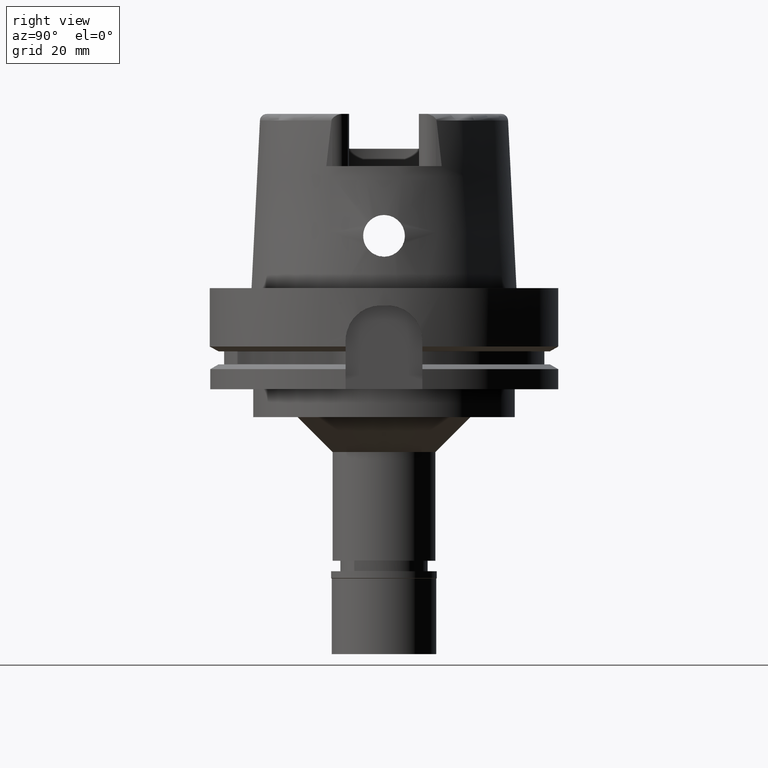
[diagram: clean part render]
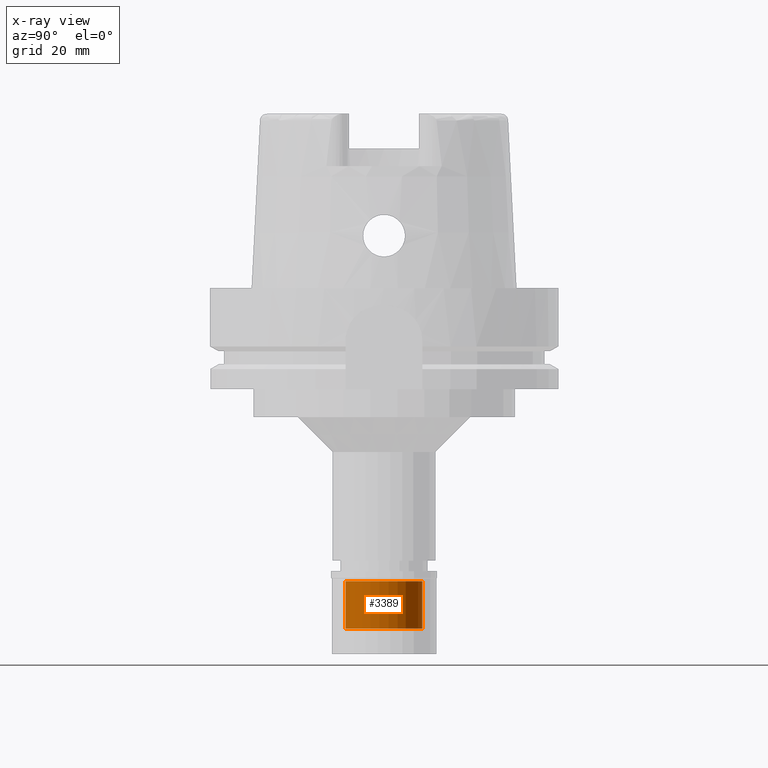
[diagram: x-ray — body ghosted, one internal face saturated and labeled with its STEP entity id]
A machine part, right view, then the same camera in x-ray: the body is ghosted and one INTERNAL B-rep face — a face not visible from any outside direction — is saturated and labeled: STEP entity #3389.
In plain terms, the highlighted cylindrical surface (partial cylindrical patch) has radius 11 mm, axis along (0, 0, -1).
Its self-contained STEP definition (entity closure, byte-faithful):
#39 = CYLINDRICAL_SURFACE ( 'NONE', #3847, 11.00000000000000000 ) ;
#197 = CARTESIAN_POINT ( 'NONE',  ( 0.0000000000000000000, 11.00000000000000000, -16.50000000000000000 ) ) ;
#258 = EDGE_CURVE ( 'NONE', #467, #3808, #2693, .T. ) ;
#331 = AXIS2_PLACEMENT_3D ( 'NONE', #1443, #615, #531 ) ;
#460 = ORIENTED_EDGE ( 'NONE', *, *, #3529, .T. ) ;
#462 = ORIENTED_EDGE ( 'NONE', *, *, #258, .T. ) ;
#467 = VERTEX_POINT ( 'NONE', #2958 ) ;
#531 = DIRECTION ( 'NONE',  ( 0.0000000000000000000, -1.000000000000000000, 0.0000000000000000000 ) ) ;
#615 = DIRECTION ( 'NONE',  ( 0.0000000000000000000, 0.0000000000000000000, 1.000000000000000000 ) ) ;
#678 = ORIENTED_EDGE ( 'NONE', *, *, #1478, .T. ) ;
#1046 = DIRECTION ( 'NONE',  ( 0.0000000000000000000, 0.0000000000000000000, 1.000000000000000000 ) ) ;
#1113 = CARTESIAN_POINT ( 'NONE',  ( 0.0000000000000000000, -11.00000000000000000, -16.50000000000000000 ) ) ;
#1221 = CARTESIAN_POINT ( 'NONE',  ( 0.0000000000000000000, 11.00000000000000000, -2.899999999999999911 ) ) ;
#1255 = CARTESIAN_POINT ( 'NONE',  ( 0.0000000000000000000, 0.0000000000000000000, -16.50000000000000000 ) ) ;
#1270 = DIRECTION ( 'NONE',  ( 0.0000000000000000000, 0.0000000000000000000, -1.000000000000000000 ) ) ;
#1438 = AXIS2_PLACEMENT_3D ( 'NONE', #1255, #4664, #2627 ) ;
#1443 = CARTESIAN_POINT ( 'NONE',  ( 0.0000000000000000000, 0.0000000000000000000, -2.899999999999999911 ) ) ;
#1478 = EDGE_CURVE ( 'NONE', #3808, #5067, #5002, .T. ) ;
#2330 = DIRECTION ( 'NONE',  ( 0.0000000000000000000, 0.0000000000000000000, 1.000000000000000000 ) ) ;
#2435 = CARTESIAN_POINT ( 'NONE',  ( 0.0000000000000000000, -11.00000000000000000, -16.50000000000000000 ) ) ;
#2560 = DIRECTION ( 'NONE',  ( 0.0000000000000000000, -1.000000000000000000, 0.0000000000000000000 ) ) ;
#2627 = DIRECTION ( 'NONE',  ( 0.0000000000000000000, 1.000000000000000000, 0.0000000000000000000 ) ) ;
#2693 = CIRCLE ( 'NONE', #1438, 11.00000000000000000 ) ;
#2777 = CIRCLE ( 'NONE', #331, 11.00000000000000000 ) ;
#2802 = EDGE_LOOP ( 'NONE', ( #462, #678, #460, #5174 ) ) ;
#2890 = VERTEX_POINT ( 'NONE', #1221 ) ;
#2958 = CARTESIAN_POINT ( 'NONE',  ( 0.0000000000000000000, 11.00000000000000000, -16.50000000000000000 ) ) ;
#3222 = EDGE_CURVE ( 'NONE', #467, #2890, #4963, .T. ) ;
#3389 = ADVANCED_FACE ( 'NONE', ( #4712 ), #39, .F. ) ;
#3529 = EDGE_CURVE ( 'NONE', #5067, #2890, #2777, .T. ) ;
#3657 = VECTOR ( 'NONE', #2330, 1000.000000000000000 ) ;
#3663 = CARTESIAN_POINT ( 'NONE',  ( 0.0000000000000000000, -11.00000000000000000, -2.899999999999999911 ) ) ;
#3808 = VERTEX_POINT ( 'NONE', #2435 ) ;
#3847 = AXIS2_PLACEMENT_3D ( 'NONE', #3887, #1270, #2560 ) ;
#3887 = CARTESIAN_POINT ( 'NONE',  ( 0.0000000000000000000, 0.0000000000000000000, 0.0000000000000000000 ) ) ;
#4664 = DIRECTION ( 'NONE',  ( 0.0000000000000000000, 0.0000000000000000000, -1.000000000000000000 ) ) ;
#4712 = FACE_OUTER_BOUND ( 'NONE', #2802, .T. ) ;
#4833 = VECTOR ( 'NONE', #1046, 1000.000000000000000 ) ;
#4963 = LINE ( 'NONE', #197, #4833 ) ;
#5002 = LINE ( 'NONE', #1113, #3657 ) ;
#5067 = VERTEX_POINT ( 'NONE', #3663 ) ;
#5174 = ORIENTED_EDGE ( 'NONE', *, *, #3222, .F. ) ;